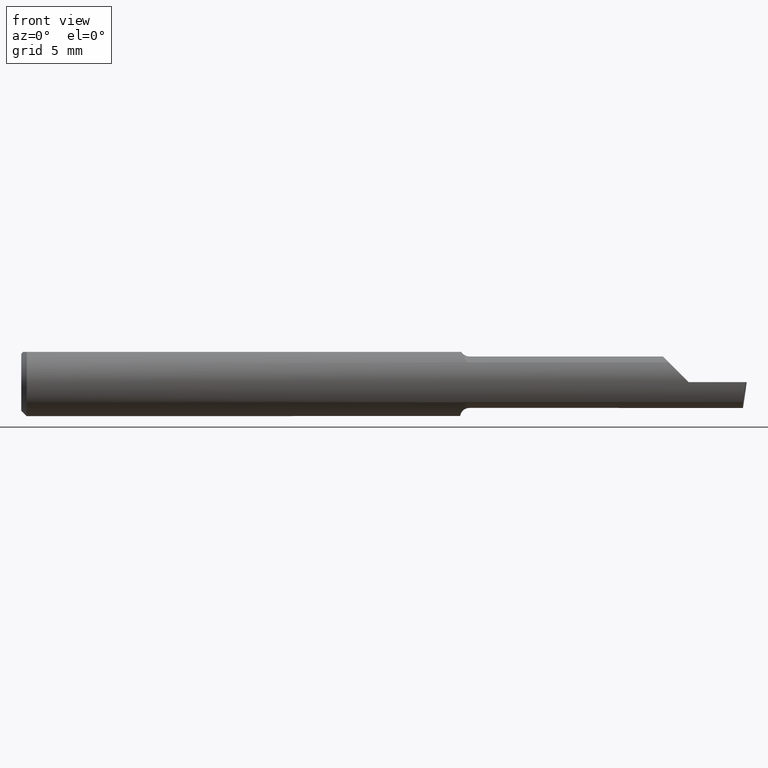
[diagram: clean part render]
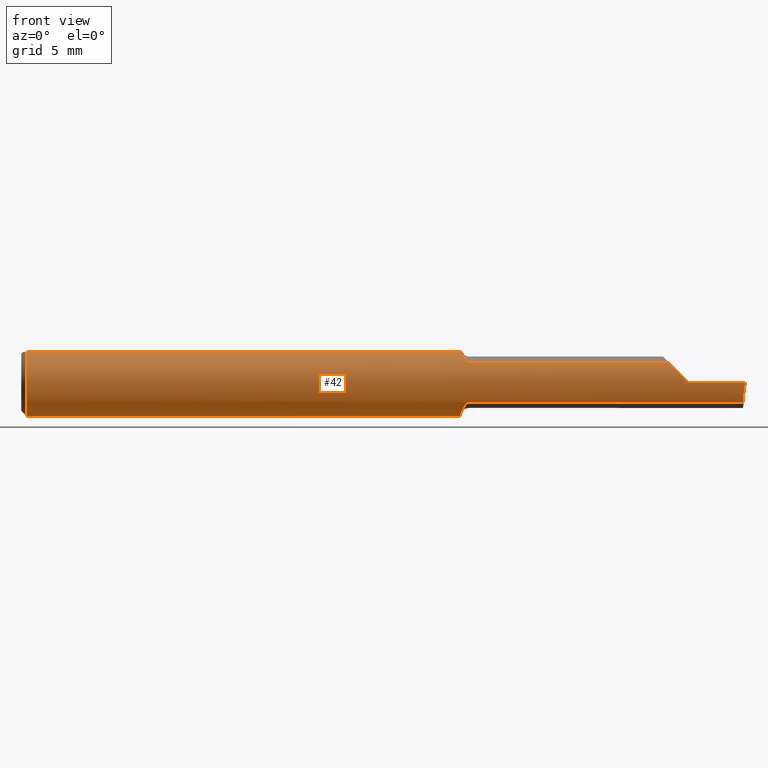
[diagram: same view with one face highlighted and labeled with its STEP entity id]
A machine part, front view. The second image highlights one B-rep face of the part: STEP entity #42.
In plain terms, the highlighted cylindrical surface (edge-blend (fillet) strip) has radius 2.3774 mm, axis along (-1, -0, -0).
Its self-contained STEP definition (entity closure, byte-faithful):
#7 = CARTESIAN_POINT ( 'NONE',  ( 1.227249994923977461, -0.07326991650738474970, -0.05826485454810933357 ) ) ;
#27 = CARTESIAN_POINT ( 'NONE',  ( 1.989625015145393139, -0.07608366013071823919, -0.05451822320209416539 ) ) ;
#30 = CARTESIAN_POINT ( 'NONE',  ( 5.659797890829555466E-31, -0.09359999999999998876, 1.030335658007946046E-15 ) ) ;
#31 = ORIENTED_EDGE ( 'NONE', *, *, #257, .T. ) ;
#34 = EDGE_CURVE ( 'NONE', #59, #248, #347, .T. ) ;
#42 = ADVANCED_FACE ( 'NONE', ( #255 ), #295, .T. ) ;
#49 = CARTESIAN_POINT ( 'NONE',  ( 1.222372878085588033, -0.06813570069660582207, -0.06426486695182642706 ) ) ;
#50 = CARTESIAN_POINT ( 'NONE',  ( 1.212861144841092864, -0.04209513036041390849, 0.08360000000000000764 ) ) ;
#59 = VERTEX_POINT ( 'NONE', #50 ) ;
#66 = ORIENTED_EDGE ( 'NONE', *, *, #394, .F. ) ;
#72 = CARTESIAN_POINT ( 'NONE',  ( 1.995862624392068074, -0.09360000000000009979, -6.605666309584466665E-17 ) ) ;
#73 = EDGE_CURVE ( 'NONE', #491, #145, #81, .T. ) ;
#75 = LINE ( 'NONE', #30, #246 ) ;
#76 = VECTOR ( 'NONE', #206, 39.37007874015748143 ) ;
#78 = EDGE_CURVE ( 'NONE', #494, #147, #627, .T. ) ;
#80 = CARTESIAN_POINT ( 'NONE',  ( 0.01500000000000000291, -0.04209513035969835587, 0.08360000000000000764 ) ) ;
#81 = CIRCLE ( 'NONE', #150, 0.09360000000000001652 ) ;
#92 = B_SPLINE_CURVE_WITH_KNOTS ( 'NONE', 3,
 ( #582, #523, #296, #160, #7, #483, #49, #346, #489, #258, #446, #213, #114, #586 ),
 .UNSPECIFIED., .F., .F.,
 ( 4, 2, 2, 2, 2, 2, 4 ),
 ( 1.959461805732903391E-07, 0.0001418114856513832186, 0.0002834270251222010813, 0.0005666581040638365898, 0.001133120261947111402, 0.001699582419830386213, 0.002266044577713661242 ),
 .UNSPECIFIED. ) ;
#94 = VERTEX_POINT ( 'NONE', #103 ) ;
#101 = CARTESIAN_POINT ( 'NONE',  ( 0.000000000000000000, -0.04209513035969835587, 0.08360000000000000764 ) ) ;
#103 = CARTESIAN_POINT ( 'NONE',  ( 0.01499999999999999771, 0.04209513035969837669, 0.08360000000000000764 ) ) ;
#106 = CARTESIAN_POINT ( 'NONE',  ( 0.01499999999999999771, 0.000000000000000000, -0.09360000000000001652 ) ) ;
#114 = CARTESIAN_POINT ( 'NONE',  ( 1.209999999999995746, -0.01523829271462613828, -0.09264723852076074684 ) ) ;
#116 = VERTEX_POINT ( 'NONE', #106 ) ;
#119 = CARTESIAN_POINT ( 'NONE',  ( 1.991292915001084296, -0.08756847698997996532, -0.03849042825095482651 ) ) ;
#126 = LINE ( 'NONE', #355, #303 ) ;
#134 = CARTESIAN_POINT ( 'NONE',  ( 1.220942860874688840, -0.06599234460544596559, 0.06650584501266759707 ) ) ;
#137 = CARTESIAN_POINT ( 'NONE',  ( 0.01499999999999999771, 0.000000000000000000, 0.000000000000000000 ) ) ;
#145 = VERTEX_POINT ( 'NONE', #578 ) ;
#146 = CARTESIAN_POINT ( 'NONE',  ( 1.995862624392068074, -0.09360000000000009979, -6.605666309584466665E-17 ) ) ;
#147 = VERTEX_POINT ( 'NONE', #154 ) ;
#149 = EDGE_CURVE ( 'NONE', #237, #476, #341, .T. ) ;
#150 = AXIS2_PLACEMENT_3D ( 'NONE', #158, #490, #438 ) ;
#154 = CARTESIAN_POINT ( 'NONE',  ( 1.234999999999999876, -0.07608366013071811429, -0.05451822320209421396 ) ) ;
#158 = CARTESIAN_POINT ( 'NONE',  ( 1.209999999999999964, 0.000000000000000000, 0.000000000000000000 ) ) ;
#160 = CARTESIAN_POINT ( 'NONE',  ( 1.228446742734843999, -0.07415202900322766244, -0.05712995986028734929 ) ) ;
#161 = DIRECTION ( 'NONE',  ( -1.000000000000000000, -4.268512490100411279E-18, -0.000000000000000000 ) ) ;
#163 = EDGE_LOOP ( 'NONE', ( #469, #298, #544, #453, #500, #192, #66, #204, #31, #329, #377, #242 ) ) ;
#183 = CARTESIAN_POINT ( 'NONE',  ( 1.216341906786436500, -0.05682123740528505912, 0.07483672126184984230 ) ) ;
#192 = ORIENTED_EDGE ( 'NONE', *, *, #34, .T. ) ;
#197 = CARTESIAN_POINT ( 'NONE',  ( 1.222718485147074929, -0.06880529263944755447, 0.06356579742164532310 ) ) ;
#204 = ORIENTED_EDGE ( 'NONE', *, *, #306, .F. ) ;
#206 = DIRECTION ( 'NONE',  ( 1.000000000000000000, 4.268512490100411279E-18, 0.000000000000000000 ) ) ;
#209 = CARTESIAN_POINT ( 'NONE',  ( 0.000000000000000000, 0.000000000000000000, 0.000000000000000000 ) ) ;
#213 = CARTESIAN_POINT ( 'NONE',  ( 1.210327566746672412, -0.02246933888146969080, -0.09115683487700423915 ) ) ;
#228 = EDGE_CURVE ( 'NONE', #307, #494, #407, .T. ) ;
#234 = CARTESIAN_POINT ( 'NONE',  ( 1.801509571749044802, -0.08756847698998002083, 0.03849042825095470161 ) ) ;
#237 = VERTEX_POINT ( 'NONE', #418 ) ;
#242 = ORIENTED_EDGE ( 'NONE', *, *, #78, .F. ) ;
#246 = VECTOR ( 'NONE', #552, 39.37007874015748143 ) ;
#248 = VERTEX_POINT ( 'NONE', #80 ) ;
#255 = FACE_OUTER_BOUND ( 'NONE', #163, .T. ) ;
#257 = EDGE_CURVE ( 'NONE', #94, #145, #126, .T. ) ;
#258 = CARTESIAN_POINT ( 'NONE',  ( 1.212858269845931369, -0.04306185800455388651, -0.08341374477435810342 ) ) ;
#276 = AXIS2_PLACEMENT_3D ( 'NONE', #209, #396, #482 ) ;
#293 = EDGE_CURVE ( 'NONE', #360, #476, #384, .T. ) ;
#295 = CYLINDRICAL_SURFACE ( 'NONE', #276, 0.09360000000000001652 ) ;
#296 = CARTESIAN_POINT ( 'NONE',  ( 1.231360941731893810, -0.07557034852506704092, -0.05524018594043163255 ) ) ;
#298 = ORIENTED_EDGE ( 'NONE', *, *, #302, .T. ) ;
#300 = CARTESIAN_POINT ( 'NONE',  ( 1.989625015145393139, -0.07608366013071823919, -0.05451822320209416539 ) ) ;
#302 = EDGE_CURVE ( 'NONE', #307, #360, #75, .T. ) ;
#303 = VECTOR ( 'NONE', #496, 39.37007874015748143 ) ;
#306 = EDGE_CURVE ( 'NONE', #94, #116, #587, .T. ) ;
#307 = VERTEX_POINT ( 'NONE', #146 ) ;
#322 = EDGE_CURVE ( 'NONE', #59, #237, #575, .T. ) ;
#324 = AXIS2_PLACEMENT_3D ( 'NONE', #333, #510, #568 ) ;
#326 = CARTESIAN_POINT ( 'NONE',  ( 1.234999999999999876, -0.07608366013071811429, 0.05451822320209421396 ) ) ;
#328 = DIRECTION ( 'NONE',  ( -1.000000000000000000, -0.000000000000000000, -0.000000000000000000 ) ) ;
#329 = ORIENTED_EDGE ( 'NONE', *, *, #73, .F. ) ;
#333 = CARTESIAN_POINT ( 'NONE',  ( 0.01499999999999999771, 0.000000000000000000, 0.000000000000000000 ) ) ;
#341 = LINE ( 'NONE', #524, #76 ) ;
#346 = CARTESIAN_POINT ( 'NONE',  ( 1.218052623108271115, -0.06089616178095316051, -0.07140423527607847598 ) ) ;
#347 = LINE ( 'NONE', #101, #571 ) ;
#353 = DIRECTION ( 'NONE',  ( -1.000000000000000000, -0.000000000000000000, -0.000000000000000000 ) ) ;
#355 = CARTESIAN_POINT ( 'NONE',  ( 0.000000000000000000, 0.04209513035969837669, 0.08360000000000000764 ) ) ;
#360 = VERTEX_POINT ( 'NONE', #605 ) ;
#374 = AXIS2_PLACEMENT_3D ( 'NONE', #137, #328, #478 ) ;
#377 = ORIENTED_EDGE ( 'NONE', *, *, #573, .F. ) ;
#381 = CARTESIAN_POINT ( 'NONE',  ( 1.227524991500364981, -0.07354719313698337979, 0.05791404302443237812 ) ) ;
#384 =( BOUNDED_CURVE ( )  B_SPLINE_CURVE ( 3, ( #506, #464, #234, #596 ),
 .UNSPECIFIED., .F., .T. ) 
 B_SPLINE_CURVE_WITH_KNOTS ( ( 4, 4 ),
 ( 4.712388980384689674, 5.334140324029830182 ),
 .UNSPECIFIED. ) 
 CURVE ( )  GEOMETRIC_REPRESENTATION_ITEM ( )  RATIONAL_B_SPLINE_CURVE ( ( 1.000000000000000000, 0.9680440490283178656, 0.9680440490283178656, 1.000000000000000000 ) ) 
 REPRESENTATION_ITEM ( '' )  );
#394 = EDGE_CURVE ( 'NONE', #116, #248, #456, .T. ) ;
#396 = DIRECTION ( 'NONE',  ( -1.000000000000000000, -0.000000000000000000, -0.000000000000000000 ) ) ;
#399 = CARTESIAN_POINT ( 'NONE',  ( 1.545000000000000151, -0.07608366013071823919, -0.05451822320209416539 ) ) ;
#407 =( BOUNDED_CURVE ( )  B_SPLINE_CURVE ( 3, ( #72, #600, #119, #27 ),
 .UNSPECIFIED., .F., .F. ) 
 B_SPLINE_CURVE_WITH_KNOTS ( ( 4, 4 ),
 ( 4.922438424664829171, 5.544189768309970567 ),
 .UNSPECIFIED. ) 
 CURVE ( )  GEOMETRIC_REPRESENTATION_ITEM ( )  RATIONAL_B_SPLINE_CURVE ( ( 1.000000000000000000, 0.9680440490283178656, 0.9680440490283178656, 1.000000000000000000 ) ) 
 REPRESENTATION_ITEM ( '' )  );
#418 = CARTESIAN_POINT ( 'NONE',  ( 1.234999999999999876, -0.07608366013071811429, 0.05451822320209421396 ) ) ;
#424 = CARTESIAN_POINT ( 'NONE',  ( 1.212861144841092864, -0.04209513036041390849, 0.08360000000000000764 ) ) ;
#438 = DIRECTION ( 'NONE',  ( 0.000000000000000000, 1.000000000000000000, 0.000000000000000000 ) ) ;
#443 = CARTESIAN_POINT ( 'NONE',  ( 1.785481776797905207, -0.07608366013071837797, 0.05451822320209400580 ) ) ;
#446 = CARTESIAN_POINT ( 'NONE',  ( 1.211750924354898951, -0.03635445752162108635, -0.08656092162675017854 ) ) ;
#453 = ORIENTED_EDGE ( 'NONE', *, *, #149, .F. ) ;
#456 = CIRCLE ( 'NONE', #374, 0.09360000000000001652 ) ;
#464 = CARTESIAN_POINT ( 'NONE',  ( 1.820282210334661199, -0.09360000000000003040, 0.01971778966533898128 ) ) ;
#469 = ORIENTED_EDGE ( 'NONE', *, *, #228, .F. ) ;
#476 = VERTEX_POINT ( 'NONE', #443 ) ;
#478 = DIRECTION ( 'NONE',  ( 0.000000000000000000, 0.000000000000000000, 1.000000000000000000 ) ) ;
#482 = DIRECTION ( 'NONE',  ( 0.000000000000000000, 0.000000000000000000, 1.000000000000000000 ) ) ;
#483 = CARTESIAN_POINT ( 'NONE',  ( 1.224014441612382820, -0.07037190759423141151, -0.06179005084634876799 ) ) ;
#489 = CARTESIAN_POINT ( 'NONE',  ( 1.216007506249286996, -0.05524264031795321495, -0.07589747771031243873 ) ) ;
#490 = DIRECTION ( 'NONE',  ( 1.000000000000000000, 4.268512490100411279E-18, 0.000000000000000000 ) ) ;
#491 = VERTEX_POINT ( 'NONE', #526 ) ;
#494 = VERTEX_POINT ( 'NONE', #300 ) ;
#496 = DIRECTION ( 'NONE',  ( 1.000000000000000000, 0.000000000000000000, 0.000000000000000000 ) ) ;
#500 = ORIENTED_EDGE ( 'NONE', *, *, #322, .F. ) ;
#506 = CARTESIAN_POINT ( 'NONE',  ( 1.840000000000000080, -0.09360000000000005815, 1.959434878635762025E-17 ) ) ;
#510 = DIRECTION ( 'NONE',  ( -1.000000000000000000, -0.000000000000000000, -0.000000000000000000 ) ) ;
#514 = CARTESIAN_POINT ( 'NONE',  ( 1.230753778368558482, -0.07537148234687032766, 0.05551905660761850825 ) ) ;
#516 = CARTESIAN_POINT ( 'NONE',  ( 1.214336437763706034, -0.04985092026457538933, 0.07969472503477174896 ) ) ;
#523 = CARTESIAN_POINT ( 'NONE',  ( 1.233103322019917014, -0.07608366013071814205, -0.05451822320209429723 ) ) ;
#524 = CARTESIAN_POINT ( 'NONE',  ( 1.545000000000000151, -0.07608366013071823919, 0.05451822320209416539 ) ) ;
#526 = CARTESIAN_POINT ( 'NONE',  ( 1.209999999999999964, -0.007864705882352667973, -0.09326900021649256467 ) ) ;
#540 = VECTOR ( 'NONE', #161, 39.37007874015748143 ) ;
#544 = ORIENTED_EDGE ( 'NONE', *, *, #293, .T. ) ;
#552 = DIRECTION ( 'NONE',  ( -1.000000000000000000, -0.000000000000000000, -0.000000000000000000 ) ) ;
#568 = DIRECTION ( 'NONE',  ( 0.000000000000000000, 0.000000000000000000, 1.000000000000000000 ) ) ;
#571 = VECTOR ( 'NONE', #353, 39.37007874015748143 ) ;
#573 = EDGE_CURVE ( 'NONE', #147, #491, #92, .T. ) ;
#575 = B_SPLINE_CURVE_WITH_KNOTS ( 'NONE', 3,
 ( #424, #516, #183, #134, #197, #617, #381, #514, #612, #326 ),
 .UNSPECIFIED., .F., .F.,
 ( 4, 2, 2, 2, 4 ),
 ( 4.459497342987283315E-07, 0.0006638717458672108900, 0.0009955846439336653829, 0.001161441092966892900, 0.001327297542000120418 ),
 .UNSPECIFIED. ) ;
#578 = CARTESIAN_POINT ( 'NONE',  ( 1.209999999999999964, 0.04209513035969836975, 0.08360000000000000764 ) ) ;
#582 = CARTESIAN_POINT ( 'NONE',  ( 1.234999999999999876, -0.07608366013071811429, -0.05451822320209421396 ) ) ;
#586 = CARTESIAN_POINT ( 'NONE',  ( 1.209999999999999964, -0.007864705882352667973, -0.09326900021649256467 ) ) ;
#587 = CIRCLE ( 'NONE', #324, 0.09360000000000001652 ) ;
#596 = CARTESIAN_POINT ( 'NONE',  ( 1.785481776797905207, -0.07608366013071837797, 0.05451822320209400580 ) ) ;
#600 = CARTESIAN_POINT ( 'NONE',  ( 1.993440754331651910, -0.09359999999999998876, -0.01971778966533907149 ) ) ;
#605 = CARTESIAN_POINT ( 'NONE',  ( 1.840000000000000080, -0.09360000000000005815, 1.959434878635762025E-17 ) ) ;
#612 = CARTESIAN_POINT ( 'NONE',  ( 1.232761054724242467, -0.07608366013204306832, 0.05451822320024542895 ) ) ;
#617 = CARTESIAN_POINT ( 'NONE',  ( 1.226209588651319349, -0.07242362088648865437, 0.05932313091832382840 ) ) ;
#627 = LINE ( 'NONE', #399, #540 ) ;